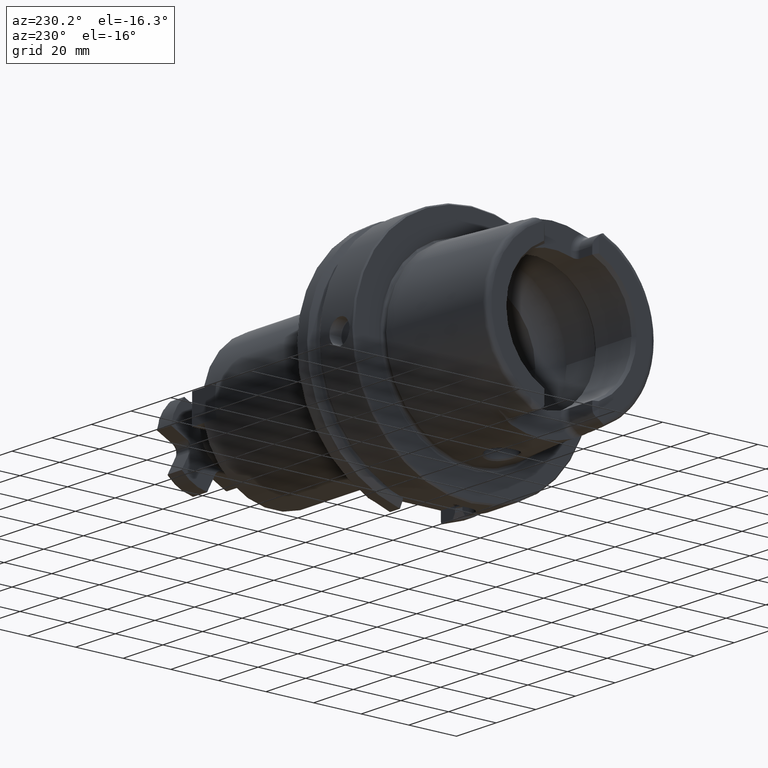
[diagram: clean part render]
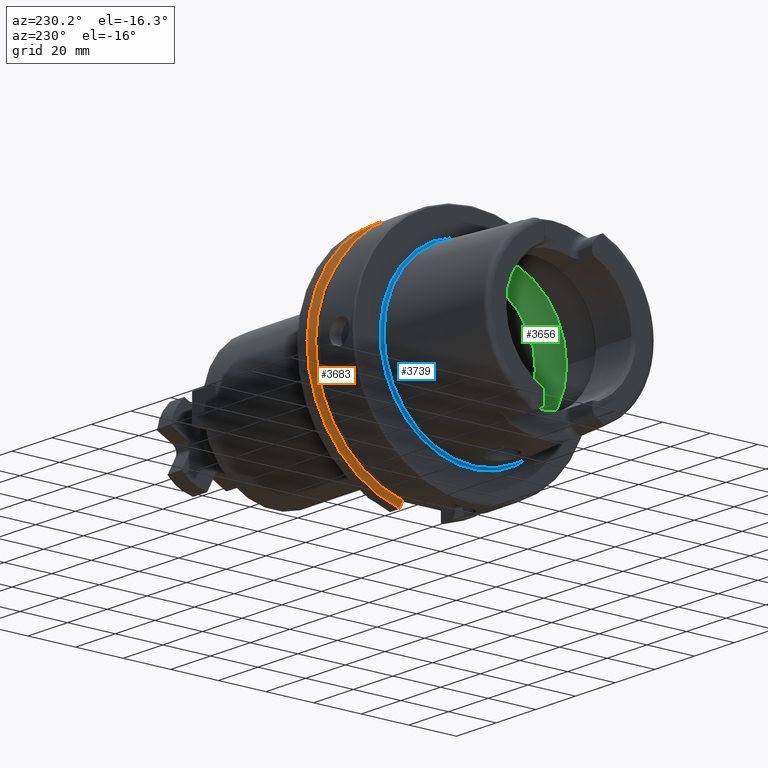
[diagram: same view with three faces highlighted in distinct colors, each labeled with its STEP entity id]
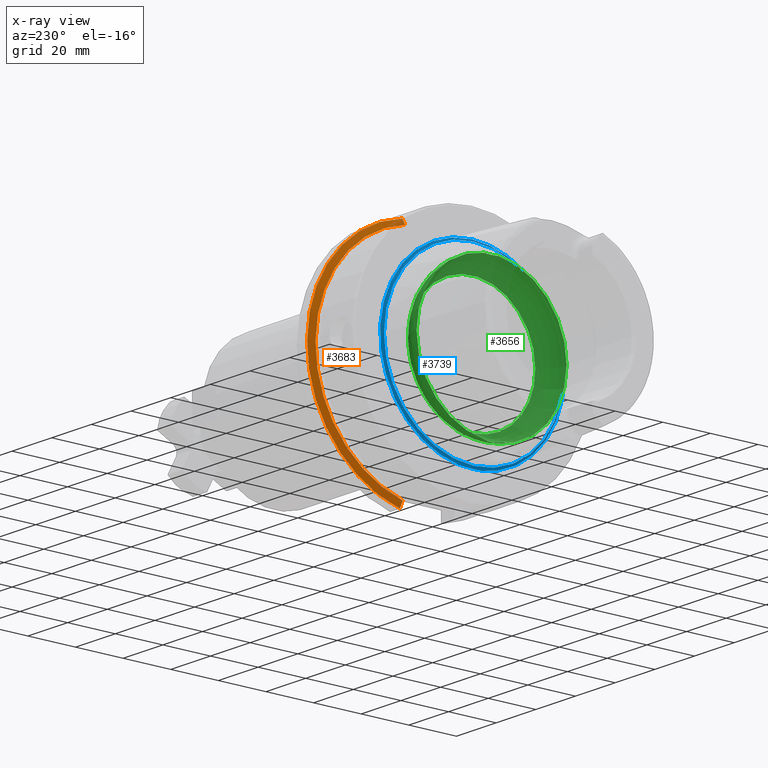
[diagram: x-ray of the same camera — body ghosted, the three highlighted faces saturated]
A machine part, auxiliary view with three faces highlighted in distinct colors.
The next image is the same camera in x-ray (body ghosted, the three faces saturated) — at least one of them is partly hidden behind the body in this view.
Their STEP definitions:

[orange] entity #3683 — the highlighted conical surface has half-angle 60 deg.
#502=(
BOUNDED_CURVE()
B_SPLINE_CURVE(2,(#6837,#6838,#6839),.UNSPECIFIED.,.F.,.F.)
B_SPLINE_CURVE_WITH_KNOTS((3,3),(0.,0.28292349080556),.UNSPECIFIED.)
CURVE()
GEOMETRIC_REPRESENTATION_ITEM()
RATIONAL_B_SPLINE_CURVE((1.,1.0003193410929,1.))
REPRESENTATION_ITEM('')
);
#505=(
BOUNDED_CURVE()
B_SPLINE_CURVE(2,(#6928,#6929,#6930),.UNSPECIFIED.,.F.,.F.)
B_SPLINE_CURVE_WITH_KNOTS((3,3),(0.,0.281931851964124),.UNSPECIFIED.)
CURVE()
GEOMETRIC_REPRESENTATION_ITEM()
RATIONAL_B_SPLINE_CURVE((1.,1.00031639802473,1.))
REPRESENTATION_ITEM('')
);
#852=FACE_OUTER_BOUND('',#1058,.T.);
#1058=EDGE_LOOP('',(#3031,#3032,#3033,#3034));
#1666=CIRCLE('',#4128,50.);
#1668=CIRCLE('',#4132,47.5975952641917);
#1981=VERTEX_POINT('',#6834);
#1982=VERTEX_POINT('',#6836);
#1995=VERTEX_POINT('',#6920);
#1996=VERTEX_POINT('',#6926);
#2356=EDGE_CURVE('',#1982,#1981,#502,.T.);
#2377=EDGE_CURVE('',#1982,#1995,#1666,.T.);
#2380=EDGE_CURVE('',#1981,#1996,#1668,.T.);
#2381=EDGE_CURVE('',#1996,#1995,#505,.T.);
#3031=ORIENTED_EDGE('',*,*,#2356,.T.);
#3032=ORIENTED_EDGE('',*,*,#2380,.T.);
#3033=ORIENTED_EDGE('',*,*,#2381,.T.);
#3034=ORIENTED_EDGE('',*,*,#2377,.F.);
#3597=CONICAL_SURFACE('',#4131,48.7987976320958,1.0471975511966);
#3683=ADVANCED_FACE('',(#852),#3597,.T.);
#4128=AXIS2_PLACEMENT_3D('',#6921,#4872,#4873);
#4131=AXIS2_PLACEMENT_3D('',#6925,#4879,#4880);
#4132=AXIS2_PLACEMENT_3D('',#6927,#4881,#4882);
#4872=DIRECTION('center_axis',(1.,0.,0.));
#4873=DIRECTION('ref_axis',(0.,0.,-1.));
#4879=DIRECTION('center_axis',(1.,0.,0.));
#4880=DIRECTION('ref_axis',(0.,1.,0.));
#4881=DIRECTION('center_axis',(1.,0.,0.));
#4882=DIRECTION('ref_axis',(0.,0.,-1.));
#6834=CARTESIAN_POINT('',(21.875,11.,-46.3090819919138));
#6836=CARTESIAN_POINT('',(23.2620290209214,11.,-48.7749935930288));
#6837=CARTESIAN_POINT('Ctrl Pts',(23.2620290209214,11.,-48.7749935930288));
#6838=CARTESIAN_POINT('Ctrl Pts',(22.5505288964237,11.,-47.5116880808802));
#6839=CARTESIAN_POINT('Ctrl Pts',(21.875,11.,-46.3090819919138));
#6920=CARTESIAN_POINT('',(23.2620290209214,10.,48.9897948556636));
#6921=CARTESIAN_POINT('Origin',(23.2620290209214,0.,0.));
#6925=CARTESIAN_POINT('Origin',(22.5685145104607,0.,0.));
#6926=CARTESIAN_POINT('',(21.875,10.,46.5352670018535));
#6927=CARTESIAN_POINT('Origin',(21.875,0.,0.));
#6928=CARTESIAN_POINT('Ctrl Pts',(21.875,10.,46.5352670018535));
#6929=CARTESIAN_POINT('Ctrl Pts',(22.5506945724782,10.,47.7323213251992));
#6930=CARTESIAN_POINT('Ctrl Pts',(23.2620290209214,10.,48.9897948556636));

[blue] entity #3739 — the highlighted toroidal blend (fillet) surface has major radius 38.5073 mm and minor (blend) radius 0.8 mm.
#609=TOROIDAL_SURFACE('',#4242,38.5073016032064,0.8);
#908=FACE_OUTER_BOUND('',#1118,.T.);
#1118=EDGE_LOOP('',(#3297,#3298,#3299,#3300,#3301,#3302));
#1710=CIRCLE('',#4218,38.6186400839745);
#1711=CIRCLE('',#4219,38.6186400839745);
#1721=CIRCLE('',#4240,37.7073016032064);
#1722=CIRCLE('',#4241,37.7073016032064);
#1723=CIRCLE('',#4243,0.8);
#2029=VERTEX_POINT('',#7145);
#2030=VERTEX_POINT('',#7146);
#2034=VERTEX_POINT('',#7175);
#2035=VERTEX_POINT('',#7176);
#2453=EDGE_CURVE('',#2029,#2030,#1710,.T.);
#2454=EDGE_CURVE('',#2030,#2029,#1711,.T.);
#2467=EDGE_CURVE('',#2034,#2035,#1721,.T.);
#2469=EDGE_CURVE('',#2035,#2034,#1722,.T.);
#2470=EDGE_CURVE('',#2035,#2030,#1723,.T.);
#3297=ORIENTED_EDGE('',*,*,#2467,.T.);
#3298=ORIENTED_EDGE('',*,*,#2470,.T.);
#3299=ORIENTED_EDGE('',*,*,#2453,.F.);
#3300=ORIENTED_EDGE('',*,*,#2454,.F.);
#3301=ORIENTED_EDGE('',*,*,#2470,.F.);
#3302=ORIENTED_EDGE('',*,*,#2469,.T.);
#3739=ADVANCED_FACE('',(#908),#609,.F.);
#4218=AXIS2_PLACEMENT_3D('',#7147,#5075,#5076);
#4219=AXIS2_PLACEMENT_3D('',#7148,#5077,#5078);
#4240=AXIS2_PLACEMENT_3D('',#7177,#5122,#5123);
#4241=AXIS2_PLACEMENT_3D('',#7179,#5125,#5126);
#4242=AXIS2_PLACEMENT_3D('',#7180,#5127,#5128);
#4243=AXIS2_PLACEMENT_3D('',#7181,#5129,#5130);
#5075=DIRECTION('center_axis',(1.,0.,0.));
#5076=DIRECTION('ref_axis',(0.,0.,-1.));
#5077=DIRECTION('center_axis',(1.,0.,0.));
#5078=DIRECTION('ref_axis',(0.,0.,-1.));
#5122=DIRECTION('center_axis',(1.,0.,0.));
#5123=DIRECTION('ref_axis',(0.,0.,-1.));
#5125=DIRECTION('center_axis',(1.,0.,0.));
#5126=DIRECTION('ref_axis',(0.,0.,-1.));
#5127=DIRECTION('center_axis',(1.,0.,0.));
#5128=DIRECTION('ref_axis',(0.,0.,-1.));
#5129=DIRECTION('center_axis',(0.,-1.,-1.22464679914735E-16));
#5130=DIRECTION('ref_axis',(0.,-1.22464679914735E-16,1.));
#7145=CARTESIAN_POINT('',(0.0922144549932558,-38.6186400839745,-4.7294193966263E-15));
#7146=CARTESIAN_POINT('',(0.0922144549932559,-4.7294193966263E-15,38.6186400839745));
#7147=CARTESIAN_POINT('Origin',(0.0922144549932559,0.,0.));
#7148=CARTESIAN_POINT('Origin',(0.0922144549932559,0.,0.));
#7175=CARTESIAN_POINT('',(-0.7,-37.7073016032064,-4.61781262128506E-15));
#7176=CARTESIAN_POINT('',(-0.7,-4.61781262128506E-15,37.7073016032064));
#7177=CARTESIAN_POINT('Origin',(-0.7,0.,0.));
#7179=CARTESIAN_POINT('Origin',(-0.7,0.,0.));
#7180=CARTESIAN_POINT('Origin',(-0.7,0.,0.));
#7181=CARTESIAN_POINT('Origin',(-0.7,-4.71578436521685E-15,38.5073016032064));

[green] entity #3656 — the highlighted toroidal blend (fillet) surface has major radius 19.5 mm and minor (blend) radius 12 mm.
#533=B_SPLINE_CURVE_WITH_KNOTS('',3,(#6231,#6232,#6233,#6234,#6235,#6236,
#6237,#6238,#6239,#6240),.UNSPECIFIED.,.F.,.F.,(4,2,2,2,4),(-0.606113644645353,
-0.532141714710631,-0.407956541554012,-0.344441109025195,-0.303157612487306),
 .UNSPECIFIED.);
#535=B_SPLINE_CURVE_WITH_KNOTS('',3,(#6273,#6274,#6275,#6276,#6277,#6278,
#6279,#6280,#6281,#6282),.UNSPECIFIED.,.F.,.F.,(4,2,2,2,4),(-0.303157612487306,
-0.297161587155601,-0.247817233363509,-0.174446982686599,0.),
 .UNSPECIFIED.);
#538=B_SPLINE_CURVE_WITH_KNOTS('',3,(#6423,#6424,#6425,#6426,#6427,#6428,
#6429,#6430,#6431,#6432),.UNSPECIFIED.,.F.,.F.,(4,2,2,2,4),(-0.606113644645388,
-0.532141714710621,-0.407956541553997,-0.344441109025146,-0.303157612487227),
 .UNSPECIFIED.);
#540=B_SPLINE_CURVE_WITH_KNOTS('',3,(#6465,#6466,#6467,#6468,#6469,#6470,
#6471,#6472,#6473,#6474),.UNSPECIFIED.,.F.,.F.,(4,2,2,2,4),(-0.303157612487227,
-0.297161587155532,-0.247817233363497,-0.174446982686607,0.),
 .UNSPECIFIED.);
#587=TOROIDAL_SURFACE('',#4076,19.5,12.);
#825=FACE_OUTER_BOUND('',#1030,.T.);
#1030=EDGE_LOOP('',(#2863,#2864,#2865,#2866,#2867,#2868,#2869,#2870,#2871,
#2872,#2873));
#1635=CIRCLE('',#4071,31.5);
#1638=CIRCLE('',#4074,31.5);
#1639=CIRCLE('',#4075,31.5);
#1640=CIRCLE('',#4077,26.5);
#1641=CIRCLE('',#4078,26.5);
#1642=CIRCLE('',#4079,12.);
#1915=VERTEX_POINT('',#6228);
#1916=VERTEX_POINT('',#6230);
#1917=VERTEX_POINT('',#6241);
#1920=VERTEX_POINT('',#6421);
#1921=VERTEX_POINT('',#6422);
#1922=VERTEX_POINT('',#6433);
#1923=VERTEX_POINT('',#6477);
#1926=VERTEX_POINT('',#6487);
#1927=VERTEX_POINT('',#6488);
#2266=EDGE_CURVE('',#1916,#1915,#533,.T.);
#2268=EDGE_CURVE('',#1915,#1917,#535,.T.);
#2272=EDGE_CURVE('',#1920,#1921,#538,.T.);
#2274=EDGE_CURVE('',#1921,#1922,#540,.T.);
#2276=EDGE_CURVE('',#1923,#1920,#1635,.T.);
#2280=EDGE_CURVE('',#1917,#1923,#1638,.T.);
#2281=EDGE_CURVE('',#1922,#1916,#1639,.T.);
#2282=EDGE_CURVE('',#1926,#1927,#1640,.T.);
#2283=EDGE_CURVE('',#1927,#1926,#1641,.T.);
#2284=EDGE_CURVE('',#1927,#1915,#1642,.T.);
#2863=ORIENTED_EDGE('',*,*,#2282,.F.);
#2864=ORIENTED_EDGE('',*,*,#2283,.F.);
#2865=ORIENTED_EDGE('',*,*,#2284,.T.);
#2866=ORIENTED_EDGE('',*,*,#2268,.T.);
#2867=ORIENTED_EDGE('',*,*,#2280,.T.);
#2868=ORIENTED_EDGE('',*,*,#2276,.T.);
#2869=ORIENTED_EDGE('',*,*,#2272,.T.);
#2870=ORIENTED_EDGE('',*,*,#2274,.T.);
#2871=ORIENTED_EDGE('',*,*,#2281,.T.);
#2872=ORIENTED_EDGE('',*,*,#2266,.T.);
#2873=ORIENTED_EDGE('',*,*,#2284,.F.);
#3656=ADVANCED_FACE('',(#825),#587,.F.);
#4071=AXIS2_PLACEMENT_3D('',#6478,#4720,#4721);
#4074=AXIS2_PLACEMENT_3D('',#6484,#4727,#4728);
#4075=AXIS2_PLACEMENT_3D('',#6485,#4729,#4730);
#4076=AXIS2_PLACEMENT_3D('',#6486,#4731,#4732);
#4077=AXIS2_PLACEMENT_3D('',#6489,#4733,#4734);
#4078=AXIS2_PLACEMENT_3D('',#6490,#4735,#4736);
#4079=AXIS2_PLACEMENT_3D('',#6491,#4737,#4738);
#4720=DIRECTION('center_axis',(-1.,0.,0.));
#4721=DIRECTION('ref_axis',(0.,0.,1.));
#4727=DIRECTION('center_axis',(-1.,0.,0.));
#4728=DIRECTION('ref_axis',(0.,0.,1.));
#4729=DIRECTION('center_axis',(-1.,0.,0.));
#4730=DIRECTION('ref_axis',(0.,0.,1.));
#4731=DIRECTION('center_axis',(-1.,0.,0.));
#4732=DIRECTION('ref_axis',(0.,0.,1.));
#4733=DIRECTION('center_axis',(-1.,0.,0.));
#4734=DIRECTION('ref_axis',(0.,0.,1.));
#4735=DIRECTION('center_axis',(-1.,0.,0.));
#4736=DIRECTION('ref_axis',(0.,0.,1.));
#4737=DIRECTION('center_axis',(0.,1.,-1.22464679914735E-16));
#4738=DIRECTION('ref_axis',(0.,-1.22464679914735E-16,-1.));
#6228=CARTESIAN_POINT('',(-9.,8.53116613017712E-16,-31.4767398822284));
#6230=CARTESIAN_POINT('',(-9.74679434480896,2.89893607109041,-31.3663222207471));
#6231=CARTESIAN_POINT('Ctrl Pts',(-9.74679434480898,2.89893607109041,-31.3663222207471));
#6232=CARTESIAN_POINT('Ctrl Pts',(-9.62803941549252,2.68373847757038,-31.3862111979079));
#6233=CARTESIAN_POINT('Ctrl Pts',(-9.52250794022164,2.46123932380009,-31.4027818190648));
#6234=CARTESIAN_POINT('Ctrl Pts',(-9.27707880675082,1.84905941644996,-31.4398086116956));
#6235=CARTESIAN_POINT('Ctrl Pts',(-9.16318715371328,1.45014848778478,-31.4552463037839));
#6236=CARTESIAN_POINT('Ctrl Pts',(-9.05448554629564,0.83406948853474,-31.4697090180031));
#6237=CARTESIAN_POINT('Ctrl Pts',(-9.02875508102837,0.623753972628784,-31.4730355369691));
#6238=CARTESIAN_POINT('Ctrl Pts',(-9.00473516300901,0.275210595137741,-31.4761342948647));
#6239=CARTESIAN_POINT('Ctrl Pts',(-9.,0.13762179988616,-31.4767398822284));
#6240=CARTESIAN_POINT('Ctrl Pts',(-9.,9.71445146547012E-16,-31.4767398822284));
#6241=CARTESIAN_POINT('',(-9.74679434480896,-2.89893607109041,-31.3663222207471));
#6273=CARTESIAN_POINT('Ctrl Pts',(-9.,9.83483832277069E-16,-31.4767398822284));
#6274=CARTESIAN_POINT('Ctrl Pts',(-9.,-0.0199882245331354,-31.4767398822284));
#6275=CARTESIAN_POINT('Ctrl Pts',(-9.00009988237686,-0.0399771452902417,
-31.4767270717783));
#6276=CARTESIAN_POINT('Ctrl Pts',(-9.00194380057016,-0.224464346212316,
-31.4764905359115));
#6277=CARTESIAN_POINT('Ctrl Pts',(-9.01035297969853,-0.388827878343727,
-31.4754151841588));
#6278=CARTESIAN_POINT('Ctrl Pts',(-9.0480310904853,-0.796171644009328,-31.4705320701686));
#6279=CARTESIAN_POINT('Ctrl Pts',(-9.08543037238412,-1.03809779370842,-31.4656619259797));
#6280=CARTESIAN_POINT('Ctrl Pts',(-9.26119500081336,-1.84501079512327,-31.441850680052));
#6281=CARTESIAN_POINT('Ctrl Pts',(-9.4667592962906,-2.39148034786879,-31.4132222586341));
#6282=CARTESIAN_POINT('Ctrl Pts',(-9.74679434480898,-2.89893607109041,-31.3663222207471));
#6421=CARTESIAN_POINT('',(-9.74679434480896,-2.89893607109042,31.3663222207471));
#6422=CARTESIAN_POINT('',(-8.99999999999999,7.8372767397864E-16,31.4767398822284));
#6423=CARTESIAN_POINT('Ctrl Pts',(-9.74679434480898,-2.89893607109042,31.3663222207471));
#6424=CARTESIAN_POINT('Ctrl Pts',(-9.62803941549257,-2.6837384775705,31.3862111979079));
#6425=CARTESIAN_POINT('Ctrl Pts',(-9.52250794022172,-2.46123932380032,31.4027818190648));
#6426=CARTESIAN_POINT('Ctrl Pts',(-9.27707880675083,-1.84905941645004,31.4398086116956));
#6427=CARTESIAN_POINT('Ctrl Pts',(-9.16318715371328,-1.45014848778485,31.4552463037839));
#6428=CARTESIAN_POINT('Ctrl Pts',(-9.05448554629561,-0.834069488534672,
31.4697090180031));
#6429=CARTESIAN_POINT('Ctrl Pts',(-9.02875508102836,-0.623753972628598,
31.4730355369691));
#6430=CARTESIAN_POINT('Ctrl Pts',(-9.00473516300902,-0.275210595137865,
31.4761342948647));
#6431=CARTESIAN_POINT('Ctrl Pts',(-8.99999999999999,-0.137621799886392,
31.4767398822284));
#6432=CARTESIAN_POINT('Ctrl Pts',(-8.99999999999999,9.0205620750794E-16,
31.4767398822284));
#6433=CARTESIAN_POINT('',(-9.74679434480896,2.89893607109042,31.3663222207471));
#6465=CARTESIAN_POINT('Ctrl Pts',(-8.99999999999999,8.7920239009422E-16,
31.4767398822284));
#6466=CARTESIAN_POINT('Ctrl Pts',(-8.99999999999999,0.0199882245331231,
31.4767398822284));
#6467=CARTESIAN_POINT('Ctrl Pts',(-9.00009988237684,0.0399771452902225,
31.4767270717783));
#6468=CARTESIAN_POINT('Ctrl Pts',(-9.00194380057014,0.224464346212396,31.4764905359115));
#6469=CARTESIAN_POINT('Ctrl Pts',(-9.01035297969852,0.388827878343765,31.4754151841588));
#6470=CARTESIAN_POINT('Ctrl Pts',(-9.0480310904853,0.79617164400948,31.4705320701686));
#6471=CARTESIAN_POINT('Ctrl Pts',(-9.08543037238414,1.03809779370849,31.4656619259797));
#6472=CARTESIAN_POINT('Ctrl Pts',(-9.26119500081334,1.84501079512323,31.441850680052));
#6473=CARTESIAN_POINT('Ctrl Pts',(-9.46675929629059,2.39148034786878,31.4132222586341));
#6474=CARTESIAN_POINT('Ctrl Pts',(-9.74679434480898,2.89893607109043,31.3663222207471));
#6477=CARTESIAN_POINT('',(-9.74679434480896,-31.5,3.85763741731416E-15));
#6478=CARTESIAN_POINT('Origin',(-9.74679434480896,0.,0.));
#6484=CARTESIAN_POINT('Origin',(-9.74679434480896,0.,0.));
#6485=CARTESIAN_POINT('Origin',(-9.74679434480896,0.,0.));
#6486=CARTESIAN_POINT('Origin',(-9.74679434480896,0.,0.));
#6487=CARTESIAN_POINT('',(0.,-26.5,3.24531401774049E-15));
#6488=CARTESIAN_POINT('',(0.,-3.24531401774049E-15,-26.5));
#6489=CARTESIAN_POINT('Origin',(0.,0.,0.));
#6490=CARTESIAN_POINT('Origin',(0.,0.,0.));
#6491=CARTESIAN_POINT('Origin',(-9.74679434480896,-2.38806125833734E-15,
-19.5));